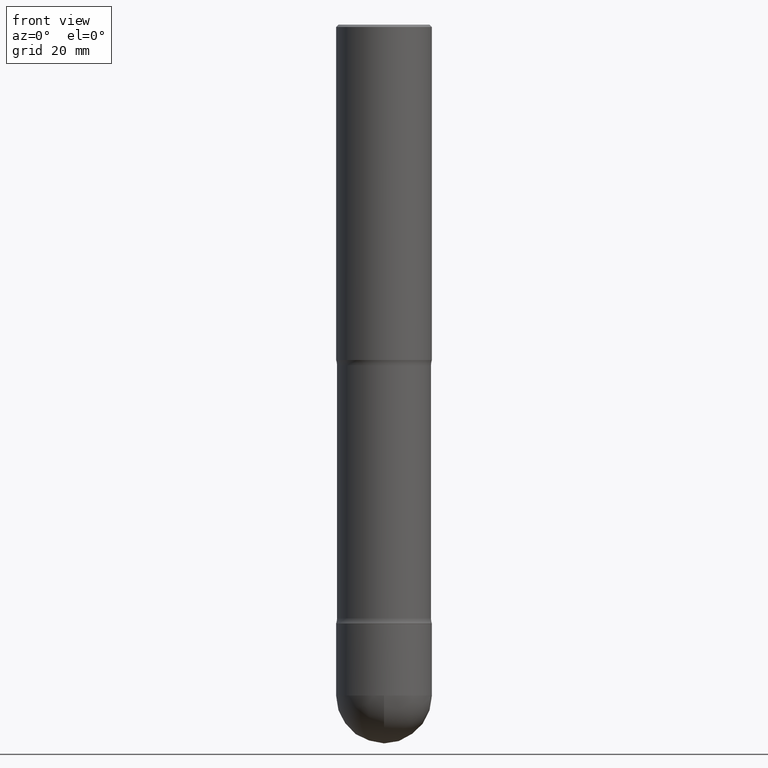
[diagram: clean part render]
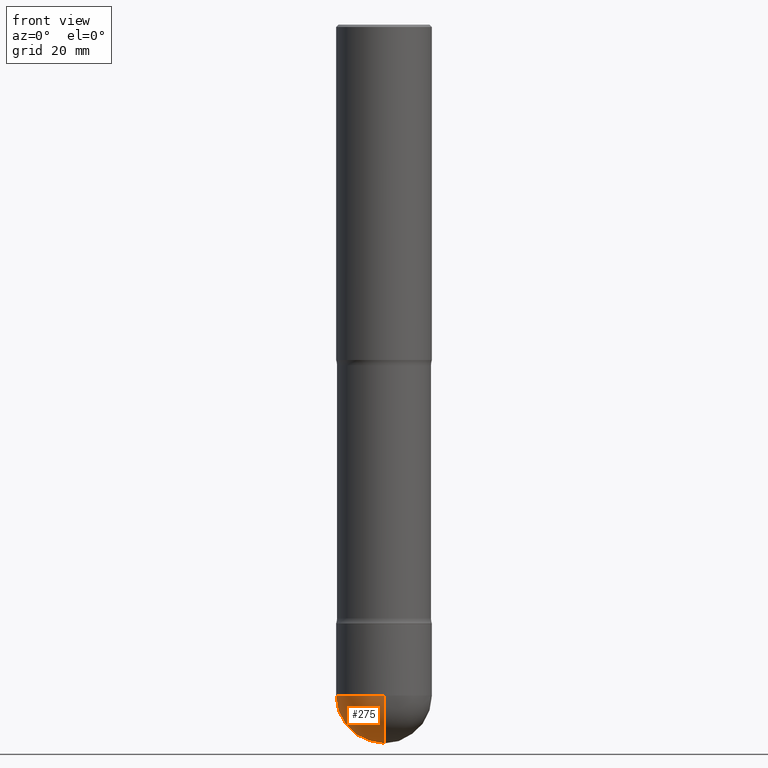
[diagram: same view with one face highlighted and labeled with its STEP entity id]
A machine part, front view. The second image highlights one B-rep face of the part: STEP entity #275.
In plain terms, the highlighted spherical surface has radius 10 mm.
Its self-contained STEP definition (entity closure, byte-faithful):
#4 = VERTEX_POINT ( 'NONE', #426 ) ;
#22 = FACE_OUTER_BOUND ( 'NONE', #256, .T. ) ;
#43 = DIRECTION ( 'NONE',  ( -2.445468806185136597E-29, 3.491481338843145583E-15, 1.000000000000000000 ) ) ;
#53 = EDGE_CURVE ( 'NONE', #313, #136, #82, .T. ) ;
#74 = EDGE_CURVE ( 'NONE', #528, #136, #260, .T. ) ;
#82 = CIRCLE ( 'NONE', #132, 0.3936999999999993838 ) ;
#88 = CARTESIAN_POINT ( 'NONE',  ( -0.3936999999999989952, -1.541590565338776243E-14, -5.511800000000000033 ) ) ;
#93 = AXIS2_PLACEMENT_3D ( 'NONE', #291, #201, #294 ) ;
#94 = DIRECTION ( 'NONE',  ( -1.000000000000000000, 7.105427357601001070E-15, -4.926315508542082329E-29 ) ) ;
#132 = AXIS2_PLACEMENT_3D ( 'NONE', #398, #94, #274 ) ;
#136 = VERTEX_POINT ( 'NONE', #282 ) ;
#137 = DIRECTION ( 'NONE',  ( -2.445468806185136597E-29, 3.491481338843145583E-15, 1.000000000000000000 ) ) ;
#175 = AXIS2_PLACEMENT_3D ( 'NONE', #361, #137, #316 ) ;
#201 = DIRECTION ( 'NONE',  ( -1.000000000000000000, 6.982962677686265133E-15, -4.883557194083111780E-29 ) ) ;
#245 = CARTESIAN_POINT ( 'NONE',  ( 1.442488208652382782E-28, -2.064305021877940893E-14, -5.905499999999999972 ) ) ;
#248 = SPHERICAL_SURFACE ( 'NONE', #93, 0.3936999999999993838 ) ;
#256 = EDGE_LOOP ( 'NONE', ( #265, #468, #296, #287 ) ) ;
#260 = CIRCLE ( 'NONE', #175, 0.3936999999999989952 ) ;
#265 = ORIENTED_EDGE ( 'NONE', *, *, #318, .F. ) ;
#274 = DIRECTION ( 'NONE',  ( -7.105427357601001070E-15, -1.000000000000000000, 0.000000000000000000 ) ) ;
#275 = ADVANCED_FACE ( 'NONE', ( #22 ), #248, .T. ) ;
#282 = CARTESIAN_POINT ( 'NONE',  ( -2.797406750687373580E-15, -0.3937000000000184796, -5.511799999999999145 ) ) ;
#287 = ORIENTED_EDGE ( 'NONE', *, *, #542, .F. ) ;
#291 = CARTESIAN_POINT ( 'NONE',  ( 1.344526706912624446E-28, -1.929256118791808272E-14, -5.511800000000000033 ) ) ;
#294 = DIRECTION ( 'NONE',  ( 6.982962677686265133E-15, 1.000000000000000000, -2.775563112689121034E-15 ) ) ;
#296 = ORIENTED_EDGE ( 'NONE', *, *, #74, .F. ) ;
#313 = VERTEX_POINT ( 'NONE', #245 ) ;
#316 = DIRECTION ( 'NONE',  ( 1.000000000000000000, -6.982962677686266711E-15, 0.000000000000000000 ) ) ;
#318 = EDGE_CURVE ( 'NONE', #313, #4, #407, .T. ) ;
#359 = CIRCLE ( 'NONE', #545, 0.3936999999999989952 ) ;
#361 = CARTESIAN_POINT ( 'NONE',  ( 1.347893496593123646E-28, -1.924434684343564878E-14, -5.511800000000000033 ) ) ;
#398 = CARTESIAN_POINT ( 'NONE',  ( 1.344526706912624446E-28, -1.929256118791808272E-14, -5.511800000000000033 ) ) ;
#407 = CIRCLE ( 'NONE', #477, 0.3936999999999993838 ) ;
#424 = CARTESIAN_POINT ( 'NONE',  ( 1.344526706912624446E-28, -1.929256118791808272E-14, -5.511800000000000033 ) ) ;
#426 = CARTESIAN_POINT ( 'NONE',  ( 2.749192406205212195E-15, 0.3936999999999799549, -5.511800000000000921 ) ) ;
#468 = ORIENTED_EDGE ( 'NONE', *, *, #53, .T. ) ;
#477 = AXIS2_PLACEMENT_3D ( 'NONE', #424, #506, #504 ) ;
#504 = DIRECTION ( 'NONE',  ( 6.982962677686265922E-15, 1.000000000000000000, 0.000000000000000000 ) ) ;
#506 = DIRECTION ( 'NONE',  ( 1.000000000000000000, -6.982962677686265922E-15, 4.883557194083112340E-29 ) ) ;
#528 = VERTEX_POINT ( 'NONE', #88 ) ;
#532 = DIRECTION ( 'NONE',  ( 1.000000000000000000, -6.982962677686266711E-15, 0.000000000000000000 ) ) ;
#538 = CARTESIAN_POINT ( 'NONE',  ( 1.347893496593123646E-28, -1.924434684343564878E-14, -5.511800000000000033 ) ) ;
#542 = EDGE_CURVE ( 'NONE', #4, #528, #359, .T. ) ;
#545 = AXIS2_PLACEMENT_3D ( 'NONE', #538, #43, #532 ) ;